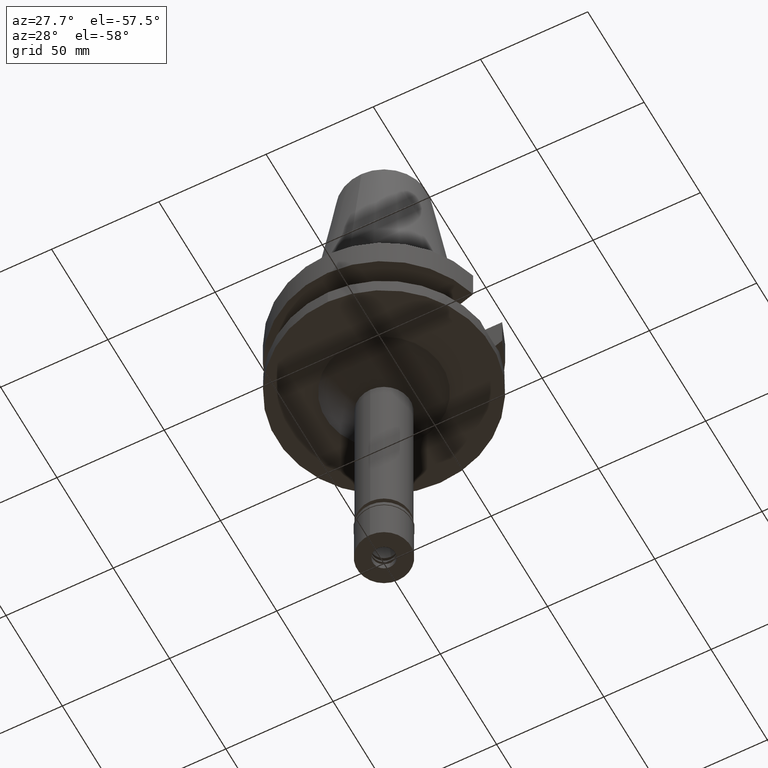
[diagram: clean part render]
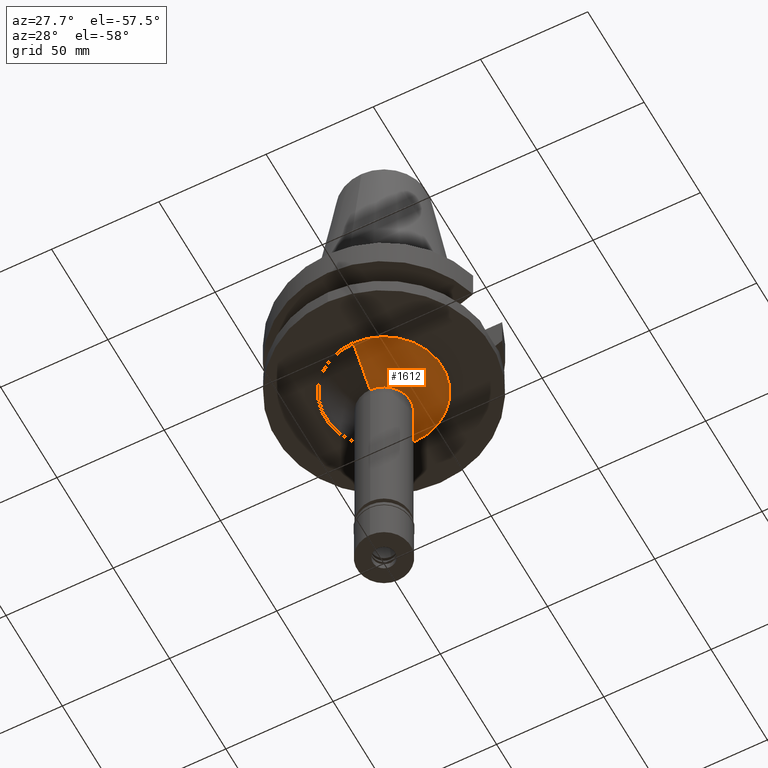
[diagram: same view with one face highlighted and labeled with its STEP entity id]
A machine part, auxiliary view. The second image highlights one B-rep face of the part: STEP entity #1612.
In plain terms, the highlighted conical surface has half-angle 45 deg.
Its self-contained STEP definition (entity closure, byte-faithful):
#27 = DIRECTION ( 'NONE',  ( 0.0000000000000000000, 0.0000000000000000000, -1.000000000000000000 ) ) ;
#39 = ORIENTED_EDGE ( 'NONE', *, *, #2843, .T. ) ;
#104 = CARTESIAN_POINT ( 'NONE',  ( 0.0000000000000000000, -27.25000000000000000, -38.00000000000000000 ) ) ;
#167 = CARTESIAN_POINT ( 'NONE',  ( 0.0000000000000000000, 0.0000000000000000000, -38.00000000000000000 ) ) ;
#271 = CARTESIAN_POINT ( 'NONE',  ( 0.0000000000000000000, 12.25000000000000000, -53.00000000000000000 ) ) ;
#359 = LINE ( 'NONE', #1311, #1280 ) ;
#371 = AXIS2_PLACEMENT_3D ( 'NONE', #1416, #3136, #1748 ) ;
#449 = VERTEX_POINT ( 'NONE', #2792 ) ;
#540 = EDGE_CURVE ( 'NONE', #449, #2618, #359, .T. ) ;
#546 = EDGE_LOOP ( 'NONE', ( #1070, #39, #1082, #744 ) ) ;
#576 = CONICAL_SURFACE ( 'NONE', #371, 19.75000000000000000, 0.7853981633972997312 ) ;
#691 = CIRCLE ( 'NONE', #2470, 12.25000000000000000 ) ;
#744 = ORIENTED_EDGE ( 'NONE', *, *, #540, .F. ) ;
#846 = DIRECTION ( 'NONE',  ( 0.0000000000000000000, -0.7071067811865474617, -0.7071067811865474617 ) ) ;
#938 = CARTESIAN_POINT ( 'NONE',  ( 0.0000000000000000000, -27.25000000000000000, -38.00000000000000000 ) ) ;
#1012 = VERTEX_POINT ( 'NONE', #1916 ) ;
#1070 = ORIENTED_EDGE ( 'NONE', *, *, #1293, .T. ) ;
#1082 = ORIENTED_EDGE ( 'NONE', *, *, #3101, .F. ) ;
#1241 = FACE_OUTER_BOUND ( 'NONE', #546, .T. ) ;
#1280 = VECTOR ( 'NONE', #846, 1000.000000000000114 ) ;
#1291 = DIRECTION ( 'NONE',  ( 0.0000000000000000000, 0.7071067811865474617, -0.7071067811865474617 ) ) ;
#1293 = EDGE_CURVE ( 'NONE', #449, #1935, #3148, .T. ) ;
#1311 = CARTESIAN_POINT ( 'NONE',  ( 0.0000000000000000000, 27.25000000000000000, -38.00000000000000000 ) ) ;
#1416 = CARTESIAN_POINT ( 'NONE',  ( 0.0000000000000000000, 0.0000000000000000000, -45.50000000000000000 ) ) ;
#1471 = CARTESIAN_POINT ( 'NONE',  ( 0.0000000000000000000, 0.0000000000000000000, -53.00000000000000000 ) ) ;
#1612 = ADVANCED_FACE ( 'NONE', ( #1241 ), #576, .T. ) ;
#1748 = DIRECTION ( 'NONE',  ( 0.0000000000000000000, 1.000000000000000000, 0.0000000000000000000 ) ) ;
#1861 = VECTOR ( 'NONE', #1291, 1000.000000000000114 ) ;
#1879 = DIRECTION ( 'NONE',  ( 0.0000000000000000000, 0.0000000000000000000, -1.000000000000000000 ) ) ;
#1916 = CARTESIAN_POINT ( 'NONE',  ( 0.0000000000000000000, -12.25000000000000000, -53.00000000000000000 ) ) ;
#1935 = VERTEX_POINT ( 'NONE', #938 ) ;
#2136 = AXIS2_PLACEMENT_3D ( 'NONE', #167, #1879, #2804 ) ;
#2415 = DIRECTION ( 'NONE',  ( 0.0000000000000000000, 1.000000000000000000, 0.0000000000000000000 ) ) ;
#2470 = AXIS2_PLACEMENT_3D ( 'NONE', #1471, #27, #2415 ) ;
#2503 = LINE ( 'NONE', #104, #1861 ) ;
#2618 = VERTEX_POINT ( 'NONE', #271 ) ;
#2792 = CARTESIAN_POINT ( 'NONE',  ( 0.0000000000000000000, 27.25000000000000000, -38.00000000000000000 ) ) ;
#2804 = DIRECTION ( 'NONE',  ( 0.0000000000000000000, 1.000000000000000000, 0.0000000000000000000 ) ) ;
#2843 = EDGE_CURVE ( 'NONE', #1935, #1012, #2503, .T. ) ;
#3101 = EDGE_CURVE ( 'NONE', #2618, #1012, #691, .T. ) ;
#3136 = DIRECTION ( 'NONE',  ( 0.0000000000000000000, 0.0000000000000000000, 1.000000000000000000 ) ) ;
#3148 = CIRCLE ( 'NONE', #2136, 27.25000000000000000 ) ;